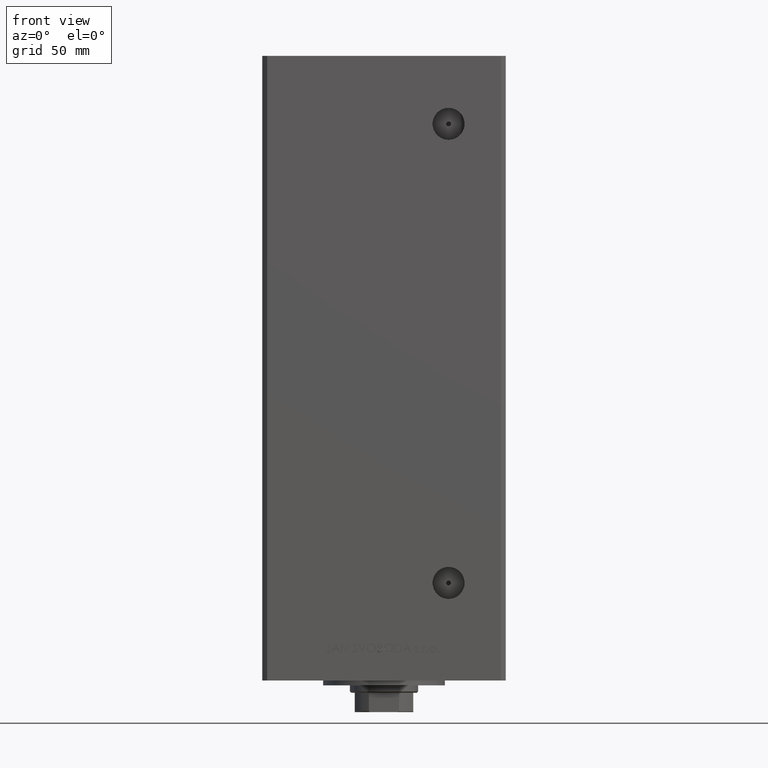
[diagram: clean part render]
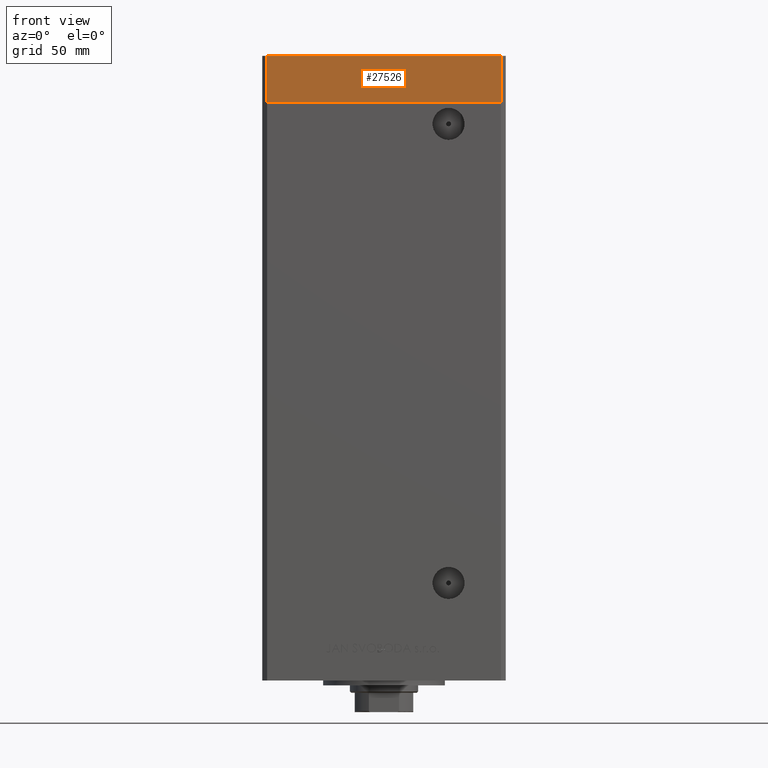
[diagram: same view with one face highlighted and labeled with its STEP entity id]
A machine part, front view. The second image highlights one B-rep face of the part: STEP entity #27526.
In plain terms, the highlighted planar face has unit normal (0, -1, 0).
Its self-contained STEP definition (entity closure, byte-faithful):
#1009 = VECTOR ( 'NONE', #41102, 1000.000000000000000 ) ;
#1141 = EDGE_CURVE ( 'NONE', #39707, #9614, #1670, .T. ) ;
#1670 = LINE ( 'NONE', #24443, #37411 ) ;
#1801 = LINE ( 'NONE', #5603, #11692 ) ;
#3947 = CARTESIAN_POINT ( 'NONE',  ( 47.99999999999999289, -43.50000000000001421, -19.00000000000000000 ) ) ;
#5070 = EDGE_CURVE ( 'NONE', #36110, #39707, #1801, .T. ) ;
#5603 = CARTESIAN_POINT ( 'NONE',  ( -47.99999999999999289, -43.50000000000001421, -19.00000000000000000 ) ) ;
#6739 = LINE ( 'NONE', #25981, #9557 ) ;
#7134 = CARTESIAN_POINT ( 'NONE',  ( -47.99999999999999289, -43.50000000000001421, 0.000000000000000000 ) ) ;
#7615 = CARTESIAN_POINT ( 'NONE',  ( -47.99999999999999289, -43.50000000000001421, -19.00000000000000000 ) ) ;
#9557 = VECTOR ( 'NONE', #33841, 1000.000000000000000 ) ;
#9614 = VERTEX_POINT ( 'NONE', #24614 ) ;
#9868 = ORIENTED_EDGE ( 'NONE', *, *, #31025, .F. ) ;
#11692 = VECTOR ( 'NONE', #43857, 1000.000000000000000 ) ;
#12815 = DIRECTION ( 'NONE',  ( 0.000000000000000000, 0.000000000000000000, 1.000000000000000000 ) ) ;
#14240 = ORIENTED_EDGE ( 'NONE', *, *, #21814, .F. ) ;
#21814 = EDGE_CURVE ( 'NONE', #36110, #25750, #6739, .T. ) ;
#24119 = EDGE_LOOP ( 'NONE', ( #9868, #14240, #37469, #47892 ) ) ;
#24443 = CARTESIAN_POINT ( 'NONE',  ( 47.99999999999999289, -43.50000000000001421, -19.00000000000000000 ) ) ;
#24614 = CARTESIAN_POINT ( 'NONE',  ( 47.99999999999999289, -43.50000000000001421, 0.000000000000000000 ) ) ;
#24846 = CARTESIAN_POINT ( 'NONE',  ( -47.99999999999999289, -43.50000000000001421, 0.000000000000000000 ) ) ;
#25750 = VERTEX_POINT ( 'NONE', #24846 ) ;
#25981 = CARTESIAN_POINT ( 'NONE',  ( -47.99999999999999289, -43.50000000000001421, -19.00000000000000000 ) ) ;
#27526 = ADVANCED_FACE ( 'NONE', ( #28071 ), #32130, .T. ) ;
#28071 = FACE_OUTER_BOUND ( 'NONE', #24119, .T. ) ;
#31025 = EDGE_CURVE ( 'NONE', #25750, #9614, #41840, .T. ) ;
#32130 = PLANE ( 'NONE',  #37255 ) ;
#33841 = DIRECTION ( 'NONE',  ( 0.000000000000000000, 0.000000000000000000, 1.000000000000000000 ) ) ;
#36110 = VERTEX_POINT ( 'NONE', #7615 ) ;
#36193 = DIRECTION ( 'NONE',  ( 0.000000000000000000, -0.000000000000000000, -1.000000000000000000 ) ) ;
#37255 = AXIS2_PLACEMENT_3D ( 'NONE', #47595, #47341, #36193 ) ;
#37411 = VECTOR ( 'NONE', #12815, 1000.000000000000000 ) ;
#37469 = ORIENTED_EDGE ( 'NONE', *, *, #5070, .T. ) ;
#39707 = VERTEX_POINT ( 'NONE', #3947 ) ;
#41102 = DIRECTION ( 'NONE',  ( 1.000000000000000000, 0.000000000000000000, 0.000000000000000000 ) ) ;
#41840 = LINE ( 'NONE', #7134, #1009 ) ;
#43857 = DIRECTION ( 'NONE',  ( 1.000000000000000000, 0.000000000000000000, 0.000000000000000000 ) ) ;
#47341 = DIRECTION ( 'NONE',  ( 0.000000000000000000, -1.000000000000000000, 0.000000000000000000 ) ) ;
#47595 = CARTESIAN_POINT ( 'NONE',  ( -47.99999999999999289, -43.50000000000001421, -19.00000000000000000 ) ) ;
#47892 = ORIENTED_EDGE ( 'NONE', *, *, #1141, .T. ) ;